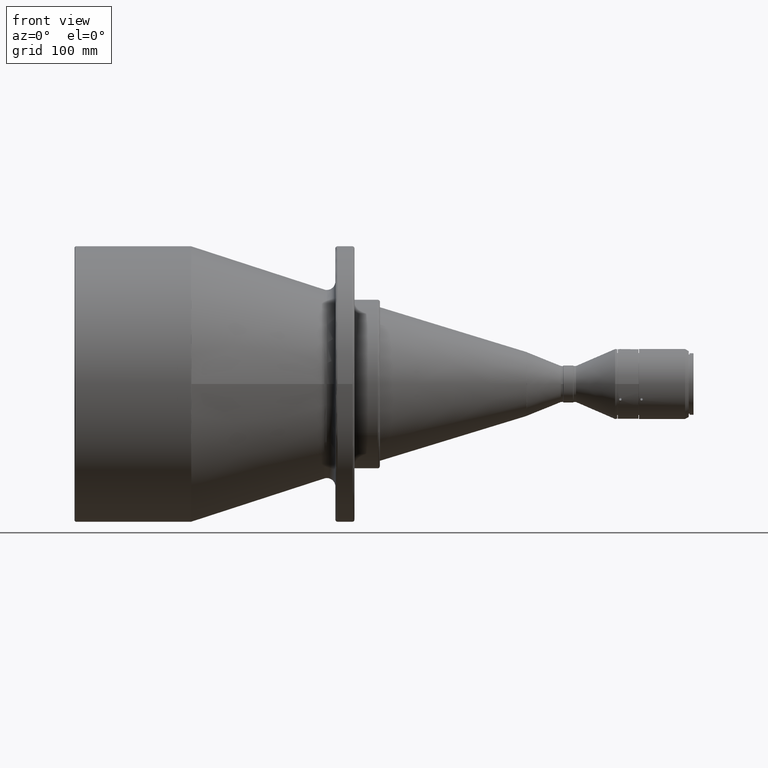
[diagram: clean part render]
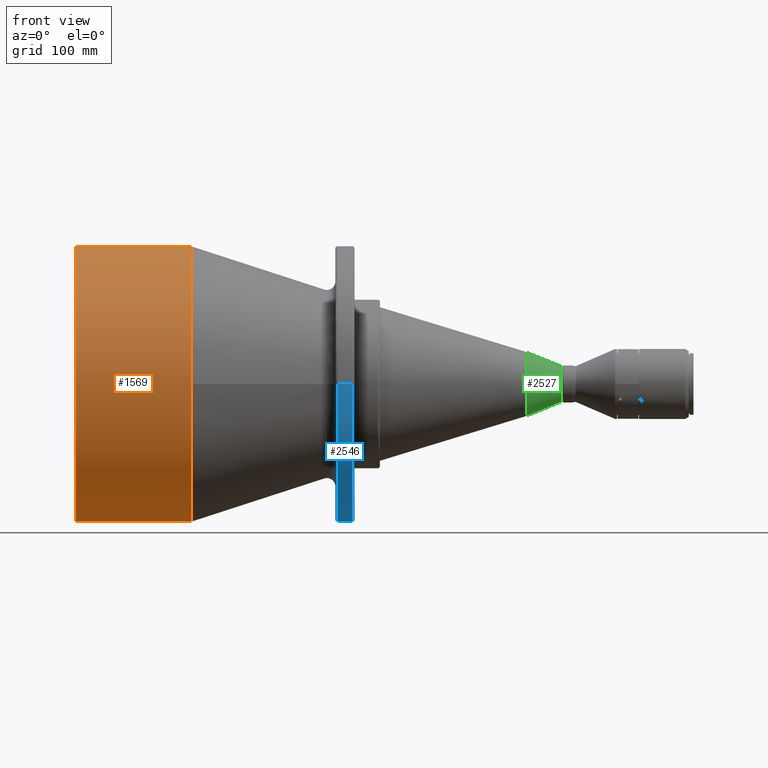
[diagram: same view with three faces highlighted in distinct colors, each labeled with its STEP entity id]
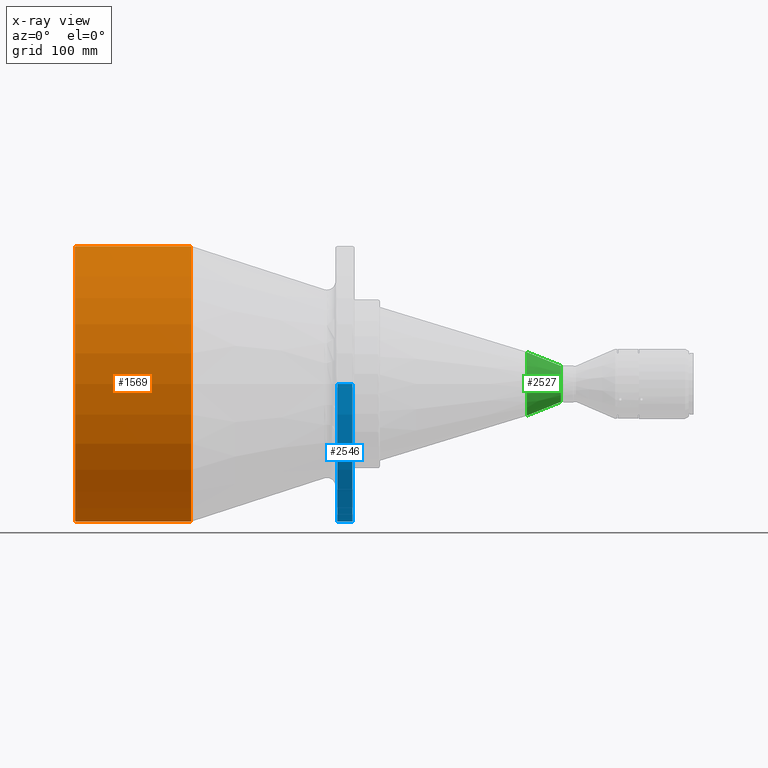
[diagram: x-ray of the same camera — body ghosted, the three highlighted faces saturated]
A machine part, front view with three faces highlighted in distinct colors.
The next image is the same camera in x-ray (body ghosted, the three faces saturated) — at least one of them is partly hidden behind the body in this view.
Their STEP definitions:

[orange] entity #1569 — the highlighted cylindrical surface (partial cylindrical patch) has radius 130 mm, axis along (-1, 0, 0).
#5 = CYLINDRICAL_SURFACE ( 'NONE', #3409, 130.0000000000000000 ) ;
#224 = CARTESIAN_POINT ( 'NONE',  ( -182.1983844400000400, 0.0000000000000000000, 130.0000000000000000 ) ) ;
#247 = EDGE_CURVE ( 'NONE', #995, #2550, #3410, .T. ) ;
#297 = DIRECTION ( 'NONE',  ( 1.000000000000000000, 2.135044278122321200E-016, 0.0000000000000000000 ) ) ;
#332 = DIRECTION ( 'NONE',  ( -1.000000000000000000, 0.0000000000000000000, 0.0000000000000000000 ) ) ;
#376 = ORIENTED_EDGE ( 'NONE', *, *, #1937, .F. ) ;
#429 = CARTESIAN_POINT ( 'NONE',  ( -291.1999999999999900, 1.592040838891559100E-014, 130.0000000000000000 ) ) ;
#529 = ORIENTED_EDGE ( 'NONE', *, *, #247, .F. ) ;
#995 = VERTEX_POINT ( 'NONE', #2666 ) ;
#1275 = CARTESIAN_POINT ( 'NONE',  ( -182.1983844406756000, 0.0000000000000000000, 0.0000000000000000000 ) ) ;
#1308 = DIRECTION ( 'NONE',  ( 0.0000000000000000000, 0.0000000000000000000, 1.000000000000000000 ) ) ;
#1370 = VECTOR ( 'NONE', #3940, 1000.000000000000000 ) ;
#1409 = EDGE_CURVE ( 'NONE', #995, #2791, #1456, .T. ) ;
#1419 = DIRECTION ( 'NONE',  ( -1.000000000000000000, 0.0000000000000000000, 0.0000000000000000000 ) ) ;
#1442 = CIRCLE ( 'NONE', #1945, 130.0000000000000000 ) ;
#1456 = LINE ( 'NONE', #224, #1596 ) ;
#1564 = DIRECTION ( 'NONE',  ( -2.135044278130471100E-016, 1.000000000000000000, 0.0000000000000000000 ) ) ;
#1569 = ADVANCED_FACE ( 'NONE', ( #2226 ), #5, .T. ) ;
#1596 = VECTOR ( 'NONE', #3320, 1000.000000000000000 ) ;
#1757 = ORIENTED_EDGE ( 'NONE', *, *, #2889, .F. ) ;
#1884 = CARTESIAN_POINT ( 'NONE',  ( -182.1983844400000400, 0.0000000000000000000, 0.0000000000000000000 ) ) ;
#1906 = ORIENTED_EDGE ( 'NONE', *, *, #1409, .T. ) ;
#1937 = EDGE_CURVE ( 'NONE', #2550, #2306, #2423, .T. ) ;
#1945 = AXIS2_PLACEMENT_3D ( 'NONE', #3924, #1419, #2039 ) ;
#2039 = DIRECTION ( 'NONE',  ( 0.0000000000000000000, 0.0000000000000000000, 1.000000000000000000 ) ) ;
#2226 = FACE_OUTER_BOUND ( 'NONE', #3459, .T. ) ;
#2306 = VERTEX_POINT ( 'NONE', #3499 ) ;
#2423 = LINE ( 'NONE', #3029, #1370 ) ;
#2550 = VERTEX_POINT ( 'NONE', #3115 ) ;
#2666 = CARTESIAN_POINT ( 'NONE',  ( -182.1983844401689200, -1.167317169573529500E-008, 129.9999999999213000 ) ) ;
#2791 = VERTEX_POINT ( 'NONE', #429 ) ;
#2889 = EDGE_CURVE ( 'NONE', #2306, #2791, #1442, .T. ) ;
#3029 = CARTESIAN_POINT ( 'NONE',  ( -182.1983844400000400, 1.592040838891559500E-014, -130.0000000000000000 ) ) ;
#3115 = CARTESIAN_POINT ( 'NONE',  ( -182.1983844401689200, -3.999516856048957800E-008, -129.9999999999213000 ) ) ;
#3320 = DIRECTION ( 'NONE',  ( -1.000000000000000000, 0.0000000000000000000, 0.0000000000000000000 ) ) ;
#3409 = AXIS2_PLACEMENT_3D ( 'NONE', #1884, #332, #1308 ) ;
#3410 = CIRCLE ( 'NONE', #3804, 129.9999999996852000 ) ;
#3459 = EDGE_LOOP ( 'NONE', ( #376, #529, #1906, #1757 ) ) ;
#3499 = CARTESIAN_POINT ( 'NONE',  ( -291.1999999999999900, 0.0000000000000000000, -130.0000000000000000 ) ) ;
#3804 = AXIS2_PLACEMENT_3D ( 'NONE', #1275, #297, #1564 ) ;
#3924 = CARTESIAN_POINT ( 'NONE',  ( -291.1999999999999900, 0.0000000000000000000, 0.0000000000000000000 ) ) ;
#3940 = DIRECTION ( 'NONE',  ( -1.000000000000000000, 0.0000000000000000000, 0.0000000000000000000 ) ) ;

[blue] entity #2546 — the highlighted cylindrical surface (partial cylindrical patch) has radius 130 mm, axis along (-1, 0, 0).
#3 = EDGE_CURVE ( 'NONE', #1222, #2836, #266, .T. ) ;
#142 = CARTESIAN_POINT ( 'NONE',  ( -29.90000000000000900, -130.0000000000000000, 0.0000000000000000000 ) ) ;
#207 = DIRECTION ( 'NONE',  ( -1.000000000000000000, 5.337610695314955600E-017, -0.0000000000000000000 ) ) ;
#266 = CIRCLE ( 'NONE', #3697, 130.0000000003185200 ) ;
#341 = VECTOR ( 'NONE', #685, 1000.000000000000000 ) ;
#348 = CARTESIAN_POINT ( 'NONE',  ( -29.90000000000000900, 0.0000000000000000000, 0.0000000000000000000 ) ) ;
#401 = CARTESIAN_POINT ( 'NONE',  ( -29.89999999999999500, 130.0000000000000000, 1.592040838891559500E-014 ) ) ;
#423 = EDGE_CURVE ( 'NONE', #1554, #1222, #502, .T. ) ;
#502 = LINE ( 'NONE', #401, #341 ) ;
#584 = DIRECTION ( 'NONE',  ( -1.000000000000000000, 1.334402673828313000E-017, 0.0000000000000000000 ) ) ;
#685 = DIRECTION ( 'NONE',  ( -1.000000000000000000, 1.334402673828313000E-017, 0.0000000000000000000 ) ) ;
#739 = ORIENTED_EDGE ( 'NONE', *, *, #746, .T. ) ;
#746 = EDGE_CURVE ( 'NONE', #3993, #1049, #1600, .T. ) ;
#747 = CARTESIAN_POINT ( 'NONE',  ( -29.89999999972065900, -3.999516856048957800E-008, -130.0000000000796400 ) ) ;
#769 = AXIS2_PLACEMENT_3D ( 'NONE', #2038, #1739, #2026 ) ;
#847 = CARTESIAN_POINT ( 'NONE',  ( -43.90000000111739100, -130.0000000000000000, 0.0000000000000000000 ) ) ;
#874 = VECTOR ( 'NONE', #2424, 1000.000000000000000 ) ;
#964 = VERTEX_POINT ( 'NONE', #747 ) ;
#1049 = VERTEX_POINT ( 'NONE', #847 ) ;
#1056 = CYLINDRICAL_SURFACE ( 'NONE', #2043, 130.0000000000000000 ) ;
#1065 = CARTESIAN_POINT ( 'NONE',  ( -43.90000000111739800, -1.333172285349652600E-008, -130.0000000002388600 ) ) ;
#1140 = EDGE_LOOP ( 'NONE', ( #1999, #2730, #3106, #739, #2917, #1341 ) ) ;
#1145 = AXIS2_PLACEMENT_3D ( 'NONE', #3394, #3369, #2146 ) ;
#1222 = VERTEX_POINT ( 'NONE', #1239 ) ;
#1239 = CARTESIAN_POINT ( 'NONE',  ( -43.90000000111739100, 130.0000000000000000, 1.592040838891559500E-014 ) ) ;
#1341 = ORIENTED_EDGE ( 'NONE', *, *, #3, .F. ) ;
#1511 = EDGE_CURVE ( 'NONE', #964, #1554, #2029, .T. ) ;
#1554 = VERTEX_POINT ( 'NONE', #2225 ) ;
#1600 = LINE ( 'NONE', #2138, #874 ) ;
#1604 = DIRECTION ( 'NONE',  ( 1.000000000000000000, -0.0000000000000000000, -0.0000000000000000000 ) ) ;
#1631 = DIRECTION ( 'NONE',  ( 8.006416042969878800E-017, 1.776356839400250500E-015, 1.000000000000000000 ) ) ;
#1739 = DIRECTION ( 'NONE',  ( 1.000000000000000000, -0.0000000000000000000, -0.0000000000000000000 ) ) ;
#1999 = ORIENTED_EDGE ( 'NONE', *, *, #423, .F. ) ;
#2026 = DIRECTION ( 'NONE',  ( 8.006416042969878800E-017, 0.0000000000000000000, 1.000000000000000000 ) ) ;
#2029 = CIRCLE ( 'NONE', #2220, 130.0000000000000000 ) ;
#2038 = CARTESIAN_POINT ( 'NONE',  ( -29.90000000000000900, 0.0000000000000000000, 0.0000000000000000000 ) ) ;
#2043 = AXIS2_PLACEMENT_3D ( 'NONE', #2072, #584, #2160 ) ;
#2072 = CARTESIAN_POINT ( 'NONE',  ( -29.89999999999999900, 0.0000000000000000000, 0.0000000000000000000 ) ) ;
#2109 = DIRECTION ( 'NONE',  ( -5.337610695300174300E-017, -1.000000000000000000, 0.0000000000000000000 ) ) ;
#2138 = CARTESIAN_POINT ( 'NONE',  ( -29.90000000000000200, -130.0000000000000000, 0.0000000000000000000 ) ) ;
#2146 = DIRECTION ( 'NONE',  ( 5.337610695300174300E-017, -1.000000000000000000, 0.0000000000000000000 ) ) ;
#2160 = DIRECTION ( 'NONE',  ( -2.668805347656626400E-017, -1.000000000000000000, 0.0000000000000000000 ) ) ;
#2220 = AXIS2_PLACEMENT_3D ( 'NONE', #348, #1604, #1631 ) ;
#2225 = CARTESIAN_POINT ( 'NONE',  ( -29.90000000000000900, 130.0000000000000000, 1.592040838891559500E-014 ) ) ;
#2402 = CARTESIAN_POINT ( 'NONE',  ( -43.90000000111739800, 0.0000000000000000000, 0.0000000000000000000 ) ) ;
#2411 = CIRCLE ( 'NONE', #1145, 130.0000000003185200 ) ;
#2424 = DIRECTION ( 'NONE',  ( -1.000000000000000000, 1.334402673828313000E-017, 0.0000000000000000000 ) ) ;
#2546 = ADVANCED_FACE ( 'NONE', ( #3875 ), #1056, .T. ) ;
#2569 = EDGE_CURVE ( 'NONE', #2836, #1049, #2411, .T. ) ;
#2730 = ORIENTED_EDGE ( 'NONE', *, *, #1511, .F. ) ;
#2812 = CIRCLE ( 'NONE', #769, 130.0000000000000000 ) ;
#2836 = VERTEX_POINT ( 'NONE', #1065 ) ;
#2917 = ORIENTED_EDGE ( 'NONE', *, *, #2569, .F. ) ;
#3106 = ORIENTED_EDGE ( 'NONE', *, *, #3991, .F. ) ;
#3369 = DIRECTION ( 'NONE',  ( -1.000000000000000000, -5.337610695314955600E-017, -0.0000000000000000000 ) ) ;
#3394 = CARTESIAN_POINT ( 'NONE',  ( -43.90000000111739800, 0.0000000000000000000, 0.0000000000000000000 ) ) ;
#3697 = AXIS2_PLACEMENT_3D ( 'NONE', #2402, #207, #2109 ) ;
#3875 = FACE_OUTER_BOUND ( 'NONE', #1140, .T. ) ;
#3991 = EDGE_CURVE ( 'NONE', #3993, #964, #2812, .T. ) ;
#3993 = VERTEX_POINT ( 'NONE', #142 ) ;

[green] entity #2527 — the highlighted conical surface has half-angle 22 deg.
#8 = ORIENTED_EDGE ( 'NONE', *, *, #594, .F. ) ;
#18 = CARTESIAN_POINT ( 'NONE',  ( 167.0000000000000300, 0.0000000000000000000, 0.0000000000000000000 ) ) ;
#65 = DIRECTION ( 'NONE',  ( -1.000000000000000000, -9.251858538589169500E-016, -0.0000000000000000000 ) ) ;
#146 = CARTESIAN_POINT ( 'NONE',  ( 167.0000000000000300, 2.877919977994089700E-015, -17.00000000000000000 ) ) ;
#313 = ORIENTED_EDGE ( 'NONE', *, *, #3268, .F. ) ;
#410 = CARTESIAN_POINT ( 'NONE',  ( 167.0000000000000300, 0.0000000000000000000, 17.00000000000000000 ) ) ;
#594 = EDGE_CURVE ( 'NONE', #1684, #1840, #3461, .T. ) ;
#672 = VECTOR ( 'NONE', #675, 1000.000000000000100 ) ;
#675 = DIRECTION ( 'NONE',  ( -0.9271838545651220900, 0.0000000000000000000, 0.3746065934200340000 ) ) ;
#811 = EDGE_CURVE ( 'NONE', #3361, #1684, #1177, .T. ) ;
#837 = VECTOR ( 'NONE', #1773, 1000.000000000000100 ) ;
#876 = ORIENTED_EDGE ( 'NONE', *, *, #2706, .F. ) ;
#1003 = FACE_OUTER_BOUND ( 'NONE', #2003, .T. ) ;
#1076 = CARTESIAN_POINT ( 'NONE',  ( 167.0000000000000000, 2.081899558550500300E-015, -17.00000000000000000 ) ) ;
#1105 = CONICAL_SURFACE ( 'NONE', #3854, 17.00000000000000000, 0.3839724354431981500 ) ;
#1176 = CARTESIAN_POINT ( 'NONE',  ( 167.0000000000000000, 0.0000000000000000000, 0.0000000000000000000 ) ) ;
#1177 = CIRCLE ( 'NONE', #1835, 17.00000000000000000 ) ;
#1491 = LINE ( 'NONE', #1866, #672 ) ;
#1587 = DIRECTION ( 'NONE',  ( 1.000000000000000000, -0.0000000000000000000, -0.0000000000000000000 ) ) ;
#1684 = VERTEX_POINT ( 'NONE', #146 ) ;
#1773 = DIRECTION ( 'NONE',  ( -0.9271838545651220900, 4.587607655713385700E-017, -0.3746065934200340000 ) ) ;
#1835 = AXIS2_PLACEMENT_3D ( 'NONE', #18, #3423, #2165 ) ;
#1840 = VERTEX_POINT ( 'NONE', #2419 ) ;
#1859 = AXIS2_PLACEMENT_3D ( 'NONE', #3812, #65, #2872 ) ;
#1866 = CARTESIAN_POINT ( 'NONE',  ( 167.0000000000000000, 0.0000000000000000000, 17.00000000000000000 ) ) ;
#2003 = EDGE_LOOP ( 'NONE', ( #8, #3708, #876, #2616, #313 ) ) ;
#2165 = DIRECTION ( 'NONE',  ( -1.632680918566406600E-015, 0.0000000000000000000, 1.000000000000000000 ) ) ;
#2169 = AXIS2_PLACEMENT_3D ( 'NONE', #2177, #1587, #2856 ) ;
#2177 = CARTESIAN_POINT ( 'NONE',  ( 167.0000000000000300, 0.0000000000000000000, 0.0000000000000000000 ) ) ;
#2188 = CARTESIAN_POINT ( 'NONE',  ( 134.8238709060727800, 0.0000000000000000000, 30.00000000010655300 ) ) ;
#2195 = VERTEX_POINT ( 'NONE', #2188 ) ;
#2312 = CIRCLE ( 'NONE', #2169, 17.00000000000000000 ) ;
#2419 = CARTESIAN_POINT ( 'NONE',  ( 134.8238709060663300, -3.076551427729972400E-009, -30.00000000010915000 ) ) ;
#2527 = ADVANCED_FACE ( 'NONE', ( #1003 ), #1105, .T. ) ;
#2548 = CARTESIAN_POINT ( 'NONE',  ( 167.0000000000000300, -17.00000000000000000, 0.0000000000000000000 ) ) ;
#2616 = ORIENTED_EDGE ( 'NONE', *, *, #2694, .T. ) ;
#2694 = EDGE_CURVE ( 'NONE', #3210, #2195, #1491, .T. ) ;
#2706 = EDGE_CURVE ( 'NONE', #3210, #3361, #2312, .T. ) ;
#2752 = CIRCLE ( 'NONE', #1859, 30.00000000014546900 ) ;
#2856 = DIRECTION ( 'NONE',  ( -1.632680918566406600E-015, 0.0000000000000000000, 1.000000000000000000 ) ) ;
#2872 = DIRECTION ( 'NONE',  ( 9.251858538498109300E-016, -1.000000000000000000, 0.0000000000000000000 ) ) ;
#3210 = VERTEX_POINT ( 'NONE', #410 ) ;
#3268 = EDGE_CURVE ( 'NONE', #1840, #2195, #2752, .T. ) ;
#3359 = DIRECTION ( 'NONE',  ( -1.000000000000000000, 0.0000000000000000000, 0.0000000000000000000 ) ) ;
#3361 = VERTEX_POINT ( 'NONE', #2548 ) ;
#3423 = DIRECTION ( 'NONE',  ( 1.000000000000000000, -0.0000000000000000000, -0.0000000000000000000 ) ) ;
#3461 = LINE ( 'NONE', #1076, #837 ) ;
#3708 = ORIENTED_EDGE ( 'NONE', *, *, #811, .F. ) ;
#3812 = CARTESIAN_POINT ( 'NONE',  ( 134.8238709060885600, 0.0000000000000000000, 0.0000000000000000000 ) ) ;
#3854 = AXIS2_PLACEMENT_3D ( 'NONE', #1176, #3359, #3970 ) ;
#3970 = DIRECTION ( 'NONE',  ( 0.0000000000000000000, 0.0000000000000000000, 1.000000000000000000 ) ) ;